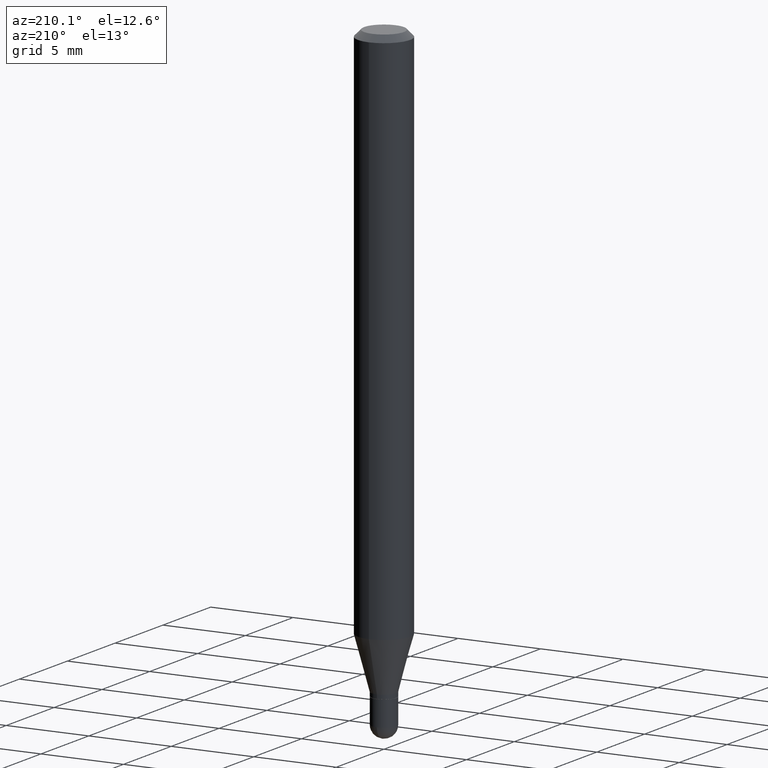
[diagram: clean part render]
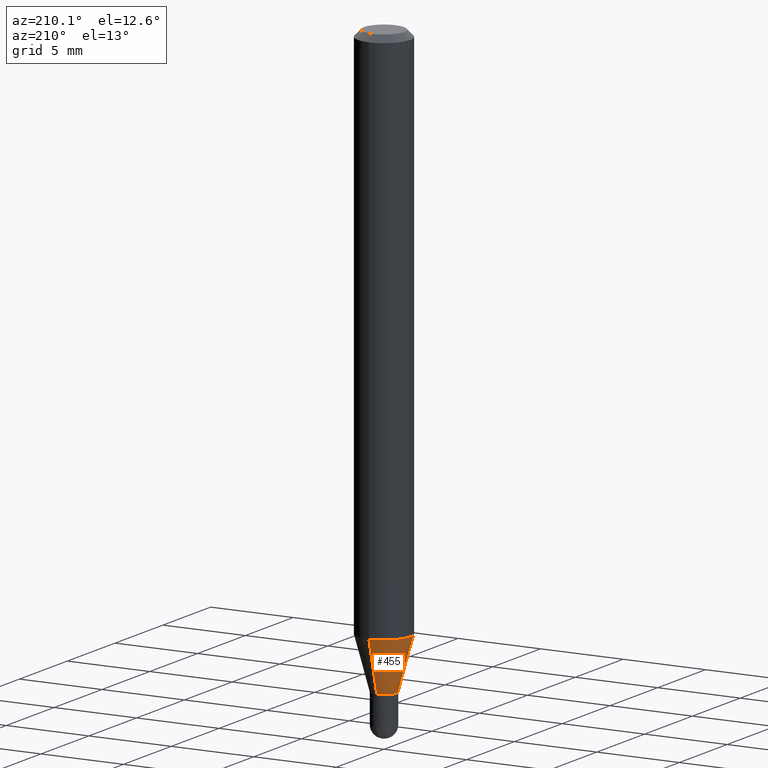
[diagram: same view with one face highlighted and labeled with its STEP entity id]
A machine part, auxiliary view. The second image highlights one B-rep face of the part: STEP entity #455.
In plain terms, the highlighted conical surface has half-angle 15 deg.
Its self-contained STEP definition (entity closure, byte-faithful):
#4 = CARTESIAN_POINT ( 'NONE',  ( 4.440892098500935790E-16, 0.06249999999999551054, -1.277842323350228959 ) ) ;
#14 = CARTESIAN_POINT ( 'NONE',  ( -2.059973989917119804E-16, -0.02950000000000509159, -1.401000000000000245 ) ) ;
#15 = CARTESIAN_POINT ( 'NONE',  ( 3.124925826572324865E-29, -4.461559352857447454E-15, -1.277842323350228737 ) ) ;
#28 = EDGE_CURVE ( 'NONE', #345, #294, #340, .T. ) ;
#29 = AXIS2_PLACEMENT_3D ( 'NONE', #41, #320, #393 ) ;
#41 = CARTESIAN_POINT ( 'NONE',  ( 3.426104303345967375E-29, -4.891561767155615897E-15, -1.401000000000000245 ) ) ;
#87 = VECTOR ( 'NONE', #179, 39.37007874015748143 ) ;
#98 = CARTESIAN_POINT ( 'NONE',  ( 3.426104303345967375E-29, -4.891561767155615897E-15, -1.401000000000000245 ) ) ;
#100 = ORIENTED_EDGE ( 'NONE', *, *, #28, .F. ) ;
#138 = EDGE_CURVE ( 'NONE', #475, #294, #368, .T. ) ;
#142 = AXIS2_PLACEMENT_3D ( 'NONE', #98, #357, #176 ) ;
#151 = ORIENTED_EDGE ( 'NONE', *, *, #156, .F. ) ;
#156 = EDGE_CURVE ( 'NONE', #400, #345, #219, .T. ) ;
#176 = DIRECTION ( 'NONE',  ( -6.982962677686265922E-15, -1.000000000000000000, 0.000000000000000000 ) ) ;
#179 = DIRECTION ( 'NONE',  ( -1.807323732225336056E-15, -0.2588190451025190186, 0.9659258262890687563 ) ) ;
#182 = CARTESIAN_POINT ( 'NONE',  ( 2.096101070492652151E-16, 0.02949999999999530775, -1.401000000000000245 ) ) ;
#187 = DIRECTION ( 'NONE',  ( -2.445470594822246081E-29, 3.491478777413001570E-15, 1.000000000000000000 ) ) ;
#190 = CIRCLE ( 'NONE', #29, 0.02950000000000019967 ) ;
#191 = DIRECTION ( 'NONE',  ( -6.982962677686265922E-15, -1.000000000000000000, 4.370956789862821150E-15 ) ) ;
#219 = LINE ( 'NONE', #182, #398 ) ;
#267 = DIRECTION ( 'NONE',  ( 1.839019923739606232E-15, 0.2588190451025257910, 0.9659258262890669799 ) ) ;
#294 = VERTEX_POINT ( 'NONE', #437 ) ;
#313 = EDGE_CURVE ( 'NONE', #400, #475, #190, .T. ) ;
#320 = DIRECTION ( 'NONE',  ( -2.445470594822246081E-29, 3.491478777413001570E-15, 1.000000000000000000 ) ) ;
#331 = CARTESIAN_POINT ( 'NONE',  ( 3.268496584496795573E-16, 0.02949999999999530775, -1.401000000000000245 ) ) ;
#340 = CIRCLE ( 'NONE', #469, 0.06250000000000000000 ) ;
#345 = VERTEX_POINT ( 'NONE', #4 ) ;
#357 = DIRECTION ( 'NONE',  ( -2.445470594822246081E-29, 3.491478777413001570E-15, 1.000000000000000000 ) ) ;
#361 = FACE_OUTER_BOUND ( 'NONE', #459, .T. ) ;
#364 = CONICAL_SURFACE ( 'NONE', #142, 0.02950000000000019967, 0.2617993877991511287 ) ;
#368 = LINE ( 'NONE', #14, #87 ) ;
#393 = DIRECTION ( 'NONE',  ( -6.982962677686265922E-15, -1.000000000000000000, 0.000000000000000000 ) ) ;
#398 = VECTOR ( 'NONE', #267, 39.37007874015748143 ) ;
#400 = VERTEX_POINT ( 'NONE', #331 ) ;
#437 = CARTESIAN_POINT ( 'NONE',  ( -4.364351673553605587E-16, -0.06250000000000449640, -1.277842323350228515 ) ) ;
#447 = ORIENTED_EDGE ( 'NONE', *, *, #313, .T. ) ;
#455 = ADVANCED_FACE ( 'NONE', ( #361 ), #364, .T. ) ;
#457 = CARTESIAN_POINT ( 'NONE',  ( -2.059973989917119804E-16, -0.02950000000000509159, -1.401000000000000245 ) ) ;
#459 = EDGE_LOOP ( 'NONE', ( #151, #447, #496, #100 ) ) ;
#469 = AXIS2_PLACEMENT_3D ( 'NONE', #15, #187, #191 ) ;
#475 = VERTEX_POINT ( 'NONE', #457 ) ;
#496 = ORIENTED_EDGE ( 'NONE', *, *, #138, .T. ) ;